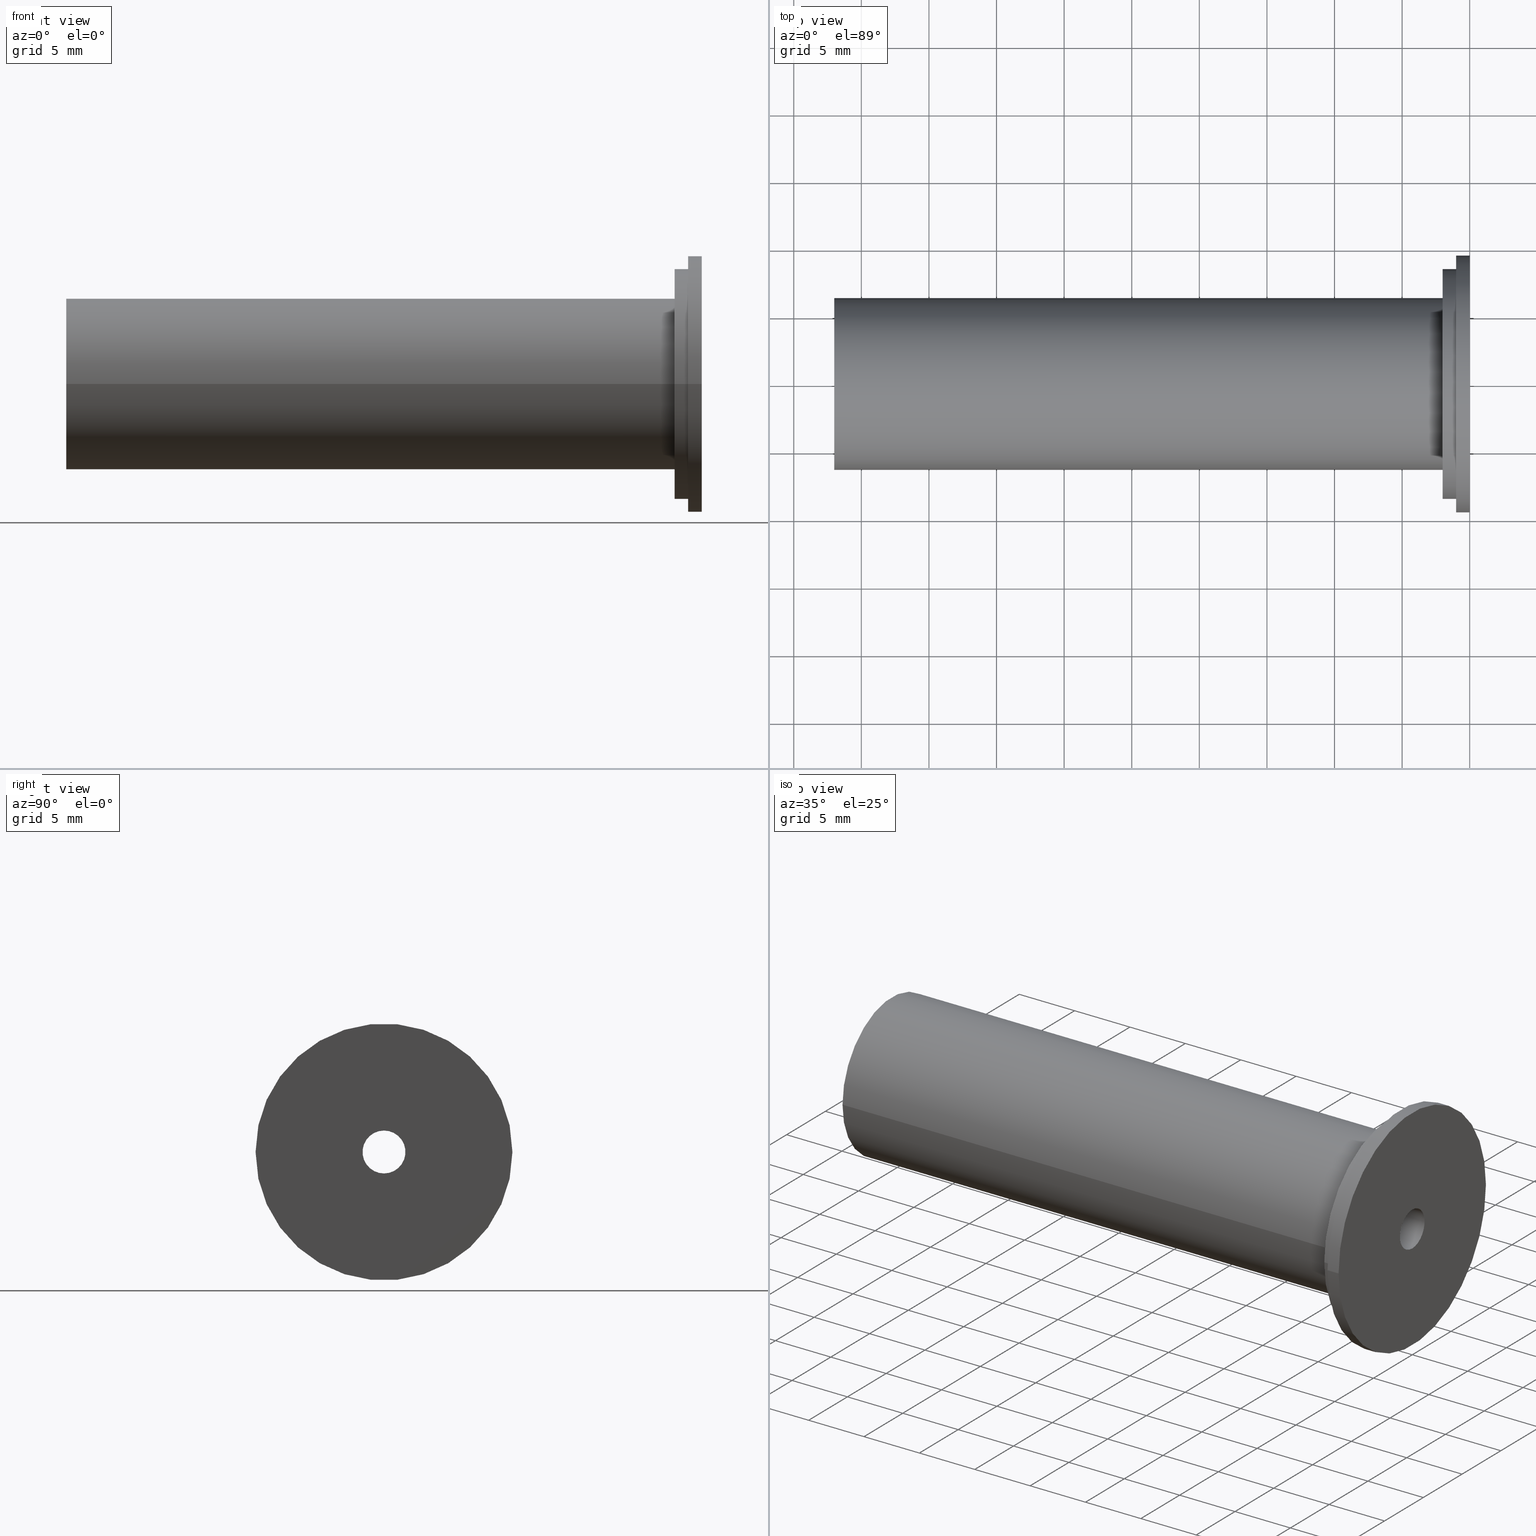
[diagram: canonical four-view strip — front | top / right | iso, engineering-drawing reading convention]
A machine part, canonical four-view strip (front | top / right | iso — engineering-drawing reading convention). The complete STEP part file that produces these views, byte-faithful:
ISO-10303-21;
HEADER;
/* Generated by software containing ST-Developer
 * from STEP Tools, Inc. (www.steptools.com) 
 */

FILE_DESCRIPTION(
/* description */ (''),
/* implementation_level */ '2;1');

FILE_NAME(
/* name */ 
'Z:\\\X2\C5F0AD6CC18C\X0\\\DRAWING_3D\\1. \X2\C778BCA4D130\X0\\\4. LAY
-OUT\\ACCESSORY&OTEHERS\\HYDRAULIC CHUCK\\REDUCTION SLEEVE (COLLET)\\H
K\\HK12.7\\INCH\\HK12.7-3.175\\612108.stp',
/* time_stamp */ '2023-05-26T10:20:03+09:00',
/* author */ ('eos'),
/* organization */ (''),
/* preprocessor_version */ 'ST-DEVELOPER v18.1',
/* originating_system */ 'Autodesk Inventor 2022',
/* authorisation */ '');

FILE_SCHEMA (('AUTOMOTIVE_DESIGN { 1 0 10303 214 3 1 1 }'));
ENDSEC;

DATA;
#10=MECHANICAL_DESIGN_GEOMETRIC_PRESENTATION_REPRESENTATION('',(#13),#384);
#11=SHAPE_REPRESENTATION_RELATIONSHIP('SRR','None',#391,#12);
#12=ADVANCED_BREP_SHAPE_REPRESENTATION('',(#14),#383);
#13=STYLED_ITEM('',(#400),#14);
#14=MANIFOLD_SOLID_BREP('\X2\C194B9ACB4DC\X0\1',#204);
#15=FACE_BOUND('',#48,.T.);
#16=FACE_BOUND('',#51,.T.);
#17=FACE_BOUND('',#53,.T.);
#18=FACE_BOUND('',#56,.T.);
#19=PLANE('',#243);
#20=PLANE('',#248);
#21=PLANE('',#249);
#22=PLANE('',#253);
#23=CONICAL_SURFACE('',#231,1.5,0.785398163397448);
#24=CONICAL_SURFACE('',#235,2.4,0.785398163397448);
#25=CONICAL_SURFACE('',#239,2.5,0.785398163397448);
#26=FACE_OUTER_BOUND('',#40,.T.);
#27=FACE_OUTER_BOUND('',#41,.T.);
#28=FACE_OUTER_BOUND('',#42,.T.);
#29=FACE_OUTER_BOUND('',#43,.T.);
#30=FACE_OUTER_BOUND('',#44,.T.);
#31=FACE_OUTER_BOUND('',#45,.T.);
#32=FACE_OUTER_BOUND('',#46,.T.);
#33=FACE_OUTER_BOUND('',#47,.T.);
#34=FACE_OUTER_BOUND('',#49,.T.);
#35=FACE_OUTER_BOUND('',#50,.T.);
#36=FACE_OUTER_BOUND('',#52,.T.);
#37=FACE_OUTER_BOUND('',#54,.T.);
#38=FACE_OUTER_BOUND('',#55,.T.);
#39=FACE_OUTER_BOUND('',#57,.T.);
#40=EDGE_LOOP('',(#133,#134,#135,#136,#137));
#41=EDGE_LOOP('',(#138,#139,#140,#141,#142));
#42=EDGE_LOOP('',(#143,#144,#145,#146));
#43=EDGE_LOOP('',(#147,#148,#149,#150));
#44=EDGE_LOOP('',(#151,#152,#153,#154));
#45=EDGE_LOOP('',(#155,#156,#157,#158));
#46=EDGE_LOOP('',(#159,#160,#161,#162));
#47=EDGE_LOOP('',(#163));
#48=EDGE_LOOP('',(#164));
#49=EDGE_LOOP('',(#165,#166,#167,#168));
#50=EDGE_LOOP('',(#169));
#51=EDGE_LOOP('',(#170));
#52=EDGE_LOOP('',(#171));
#53=EDGE_LOOP('',(#172));
#54=EDGE_LOOP('',(#173,#174,#175,#176));
#55=EDGE_LOOP('',(#177));
#56=EDGE_LOOP('',(#178));
#57=EDGE_LOOP('',(#179,#180,#181,#182));
#58=LINE('',#331,#68);
#59=LINE('',#338,#69);
#60=LINE('',#342,#70);
#61=LINE('',#346,#71);
#62=LINE('',#350,#72);
#63=LINE('',#354,#73);
#64=LINE('',#358,#74);
#65=LINE('',#367,#75);
#66=LINE('',#375,#76);
#67=LINE('',#380,#77);
#68=VECTOR('',#262,1.5875);
#69=VECTOR('',#271,1.5);
#70=VECTOR('',#276,3.);
#71=VECTOR('',#281,2.4);
#72=VECTOR('',#286,4.8);
#73=VECTOR('',#291,2.5);
#74=VECTOR('',#296,5.);
#75=VECTOR('',#307,9.5);
#76=VECTOR('',#318,6.35);
#77=VECTOR('',#325,8.5);
#78=CIRCLE('',#228,1.5875);
#79=CIRCLE('',#229,1.5875);
#80=CIRCLE('',#230,1.5875);
#81=CIRCLE('',#232,3.);
#82=CIRCLE('',#234,3.);
#83=CIRCLE('',#236,4.8);
#84=CIRCLE('',#238,4.8);
#85=CIRCLE('',#240,5.);
#86=CIRCLE('',#242,5.);
#87=CIRCLE('',#244,9.5);
#88=CIRCLE('',#245,8.5);
#89=CIRCLE('',#247,9.5);
#90=CIRCLE('',#250,6.35);
#91=CIRCLE('',#252,6.35);
#92=CIRCLE('',#254,8.5);
#93=VERTEX_POINT('',#328);
#94=VERTEX_POINT('',#330);
#95=VERTEX_POINT('',#332);
#96=VERTEX_POINT('',#336);
#97=VERTEX_POINT('',#340);
#98=VERTEX_POINT('',#344);
#99=VERTEX_POINT('',#348);
#100=VERTEX_POINT('',#352);
#101=VERTEX_POINT('',#356);
#102=VERTEX_POINT('',#360);
#103=VERTEX_POINT('',#362);
#104=VERTEX_POINT('',#365);
#105=VERTEX_POINT('',#370);
#106=VERTEX_POINT('',#373);
#107=VERTEX_POINT('',#377);
#108=EDGE_CURVE('',#93,#93,#78,.T.);
#109=EDGE_CURVE('',#93,#94,#58,.T.);
#110=EDGE_CURVE('',#95,#94,#79,.T.);
#111=EDGE_CURVE('',#94,#95,#80,.T.);
#112=EDGE_CURVE('',#96,#96,#81,.T.);
#113=EDGE_CURVE('',#96,#95,#59,.T.);
#114=EDGE_CURVE('',#97,#97,#82,.T.);
#115=EDGE_CURVE('',#97,#96,#60,.T.);
#116=EDGE_CURVE('',#98,#98,#83,.T.);
#117=EDGE_CURVE('',#98,#97,#61,.T.);
#118=EDGE_CURVE('',#99,#99,#84,.T.);
#119=EDGE_CURVE('',#99,#98,#62,.T.);
#120=EDGE_CURVE('',#100,#100,#85,.T.);
#121=EDGE_CURVE('',#100,#99,#63,.T.);
#122=EDGE_CURVE('',#101,#101,#86,.T.);
#123=EDGE_CURVE('',#101,#100,#64,.T.);
#124=EDGE_CURVE('',#102,#102,#87,.T.);
#125=EDGE_CURVE('',#103,#103,#88,.T.);
#126=EDGE_CURVE('',#104,#104,#89,.T.);
#127=EDGE_CURVE('',#104,#102,#65,.T.);
#128=EDGE_CURVE('',#105,#105,#90,.T.);
#129=EDGE_CURVE('',#106,#106,#91,.T.);
#130=EDGE_CURVE('',#106,#105,#66,.T.);
#131=EDGE_CURVE('',#107,#107,#92,.T.);
#132=EDGE_CURVE('',#103,#107,#67,.T.);
#133=ORIENTED_EDGE('',*,*,#108,.F.);
#134=ORIENTED_EDGE('',*,*,#109,.T.);
#135=ORIENTED_EDGE('',*,*,#110,.F.);
#136=ORIENTED_EDGE('',*,*,#111,.F.);
#137=ORIENTED_EDGE('',*,*,#109,.F.);
#138=ORIENTED_EDGE('',*,*,#112,.T.);
#139=ORIENTED_EDGE('',*,*,#113,.T.);
#140=ORIENTED_EDGE('',*,*,#110,.T.);
#141=ORIENTED_EDGE('',*,*,#111,.T.);
#142=ORIENTED_EDGE('',*,*,#113,.F.);
#143=ORIENTED_EDGE('',*,*,#114,.F.);
#144=ORIENTED_EDGE('',*,*,#115,.T.);
#145=ORIENTED_EDGE('',*,*,#112,.F.);
#146=ORIENTED_EDGE('',*,*,#115,.F.);
#147=ORIENTED_EDGE('',*,*,#116,.T.);
#148=ORIENTED_EDGE('',*,*,#117,.T.);
#149=ORIENTED_EDGE('',*,*,#114,.T.);
#150=ORIENTED_EDGE('',*,*,#117,.F.);
#151=ORIENTED_EDGE('',*,*,#118,.F.);
#152=ORIENTED_EDGE('',*,*,#119,.T.);
#153=ORIENTED_EDGE('',*,*,#116,.F.);
#154=ORIENTED_EDGE('',*,*,#119,.F.);
#155=ORIENTED_EDGE('',*,*,#120,.T.);
#156=ORIENTED_EDGE('',*,*,#121,.T.);
#157=ORIENTED_EDGE('',*,*,#118,.T.);
#158=ORIENTED_EDGE('',*,*,#121,.F.);
#159=ORIENTED_EDGE('',*,*,#122,.F.);
#160=ORIENTED_EDGE('',*,*,#123,.T.);
#161=ORIENTED_EDGE('',*,*,#120,.F.);
#162=ORIENTED_EDGE('',*,*,#123,.F.);
#163=ORIENTED_EDGE('',*,*,#124,.F.);
#164=ORIENTED_EDGE('',*,*,#125,.T.);
#165=ORIENTED_EDGE('',*,*,#126,.F.);
#166=ORIENTED_EDGE('',*,*,#127,.T.);
#167=ORIENTED_EDGE('',*,*,#124,.T.);
#168=ORIENTED_EDGE('',*,*,#127,.F.);
#169=ORIENTED_EDGE('',*,*,#126,.T.);
#170=ORIENTED_EDGE('',*,*,#108,.T.);
#171=ORIENTED_EDGE('',*,*,#128,.F.);
#172=ORIENTED_EDGE('',*,*,#122,.T.);
#173=ORIENTED_EDGE('',*,*,#129,.F.);
#174=ORIENTED_EDGE('',*,*,#130,.T.);
#175=ORIENTED_EDGE('',*,*,#128,.T.);
#176=ORIENTED_EDGE('',*,*,#130,.F.);
#177=ORIENTED_EDGE('',*,*,#131,.F.);
#178=ORIENTED_EDGE('',*,*,#129,.T.);
#179=ORIENTED_EDGE('',*,*,#125,.F.);
#180=ORIENTED_EDGE('',*,*,#132,.T.);
#181=ORIENTED_EDGE('',*,*,#131,.T.);
#182=ORIENTED_EDGE('',*,*,#132,.F.);
#183=CYLINDRICAL_SURFACE('',#227,1.5875);
#184=CYLINDRICAL_SURFACE('',#233,3.);
#185=CYLINDRICAL_SURFACE('',#237,4.8);
#186=CYLINDRICAL_SURFACE('',#241,5.);
#187=CYLINDRICAL_SURFACE('',#246,9.5);
#188=CYLINDRICAL_SURFACE('',#251,6.35);
#189=CYLINDRICAL_SURFACE('',#255,8.5);
#190=ADVANCED_FACE('',(#26),#183,.F.);
#191=ADVANCED_FACE('',(#27),#23,.F.);
#192=ADVANCED_FACE('',(#28),#184,.F.);
#193=ADVANCED_FACE('',(#29),#24,.F.);
#194=ADVANCED_FACE('',(#30),#185,.F.);
#195=ADVANCED_FACE('',(#31),#25,.F.);
#196=ADVANCED_FACE('',(#32),#186,.F.);
#197=ADVANCED_FACE('',(#33,#15),#19,.T.);
#198=ADVANCED_FACE('',(#34),#187,.T.);
#199=ADVANCED_FACE('',(#35,#16),#20,.T.);
#200=ADVANCED_FACE('',(#36,#17),#21,.T.);
#201=ADVANCED_FACE('',(#37),#188,.T.);
#202=ADVANCED_FACE('',(#38,#18),#22,.T.);
#203=ADVANCED_FACE('',(#39),#189,.T.);
#204=CLOSED_SHELL('',(#190,#191,#192,#193,#194,#195,#196,#197,#198,#199,
#200,#201,#202,#203));
#205=DERIVED_UNIT_ELEMENT(#208,1.);
#206=DERIVED_UNIT_ELEMENT(#386,-3.);
#207=DIMENSIONAL_EXPONENTS(1.,0.,0.,0.,0.,0.,0.);
#208=(
CONVERSION_BASED_UNIT('gram',#210)
MASS_UNIT()
NAMED_UNIT(#207)
);
#209=(
MASS_UNIT()
NAMED_UNIT(*)
SI_UNIT(.KILO.,.GRAM.)
);
#210=MASS_MEASURE_WITH_UNIT(MASS_MEASURE(0.001),#209);
#211=DERIVED_UNIT((#205,#206));
#212=MEASURE_REPRESENTATION_ITEM('density measure',
POSITIVE_RATIO_MEASURE(1.),#211);
#213=PROPERTY_DEFINITION_REPRESENTATION(#218,#215);
#214=PROPERTY_DEFINITION_REPRESENTATION(#219,#216);
#215=REPRESENTATION('material name',(#217),#383);
#216=REPRESENTATION('density',(#212),#383);
#217=DESCRIPTIVE_REPRESENTATION_ITEM('\X2\C77CBC18\X0\','\X2\C77CBC18\X0\');
#218=PROPERTY_DEFINITION('material property','material name',#393);
#219=PROPERTY_DEFINITION('material property','density of part',#393);
#220=DATE_TIME_ROLE('creation_date');
#221=APPLIED_DATE_AND_TIME_ASSIGNMENT(#222,#220,(#393));
#222=DATE_AND_TIME(#223,#224);
#223=CALENDAR_DATE(2023,2,2);
#224=LOCAL_TIME(0,0,0.,#225);
#225=COORDINATED_UNIVERSAL_TIME_OFFSET(0,0,.BEHIND.);
#226=AXIS2_PLACEMENT_3D('placement',#326,#256,#257);
#227=AXIS2_PLACEMENT_3D('',#327,#258,#259);
#228=AXIS2_PLACEMENT_3D('',#329,#260,#261);
#229=AXIS2_PLACEMENT_3D('',#333,#263,#264);
#230=AXIS2_PLACEMENT_3D('',#334,#265,#266);
#231=AXIS2_PLACEMENT_3D('',#335,#267,#268);
#232=AXIS2_PLACEMENT_3D('',#337,#269,#270);
#233=AXIS2_PLACEMENT_3D('',#339,#272,#273);
#234=AXIS2_PLACEMENT_3D('',#341,#274,#275);
#235=AXIS2_PLACEMENT_3D('',#343,#277,#278);
#236=AXIS2_PLACEMENT_3D('',#345,#279,#280);
#237=AXIS2_PLACEMENT_3D('',#347,#282,#283);
#238=AXIS2_PLACEMENT_3D('',#349,#284,#285);
#239=AXIS2_PLACEMENT_3D('',#351,#287,#288);
#240=AXIS2_PLACEMENT_3D('',#353,#289,#290);
#241=AXIS2_PLACEMENT_3D('',#355,#292,#293);
#242=AXIS2_PLACEMENT_3D('',#357,#294,#295);
#243=AXIS2_PLACEMENT_3D('',#359,#297,#298);
#244=AXIS2_PLACEMENT_3D('',#361,#299,#300);
#245=AXIS2_PLACEMENT_3D('',#363,#301,#302);
#246=AXIS2_PLACEMENT_3D('',#364,#303,#304);
#247=AXIS2_PLACEMENT_3D('',#366,#305,#306);
#248=AXIS2_PLACEMENT_3D('',#368,#308,#309);
#249=AXIS2_PLACEMENT_3D('',#369,#310,#311);
#250=AXIS2_PLACEMENT_3D('',#371,#312,#313);
#251=AXIS2_PLACEMENT_3D('',#372,#314,#315);
#252=AXIS2_PLACEMENT_3D('',#374,#316,#317);
#253=AXIS2_PLACEMENT_3D('',#376,#319,#320);
#254=AXIS2_PLACEMENT_3D('',#378,#321,#322);
#255=AXIS2_PLACEMENT_3D('',#379,#323,#324);
#256=DIRECTION('axis',(0.,0.,1.));
#257=DIRECTION('refdir',(1.,0.,0.));
#258=DIRECTION('center_axis',(1.,0.,0.));
#259=DIRECTION('ref_axis',(0.,0.,-1.));
#260=DIRECTION('center_axis',(-1.,0.,0.));
#261=DIRECTION('ref_axis',(0.,0.,-1.));
#262=DIRECTION('',(-1.,0.,0.));
#263=DIRECTION('center_axis',(1.,0.,0.));
#264=DIRECTION('ref_axis',(0.,0.,-1.));
#265=DIRECTION('center_axis',(1.,0.,0.));
#266=DIRECTION('ref_axis',(0.,0.,-1.));
#267=DIRECTION('center_axis',(-1.,0.,0.));
#268=DIRECTION('ref_axis',(0.,0.,1.));
#269=DIRECTION('center_axis',(-1.,0.,0.));
#270=DIRECTION('ref_axis',(0.,0.,1.));
#271=DIRECTION('',(0.707106781186548,8.65956056235493E-17,0.707106781186547));
#272=DIRECTION('center_axis',(-1.,0.,0.));
#273=DIRECTION('ref_axis',(0.,0.,1.));
#274=DIRECTION('center_axis',(1.,0.,0.));
#275=DIRECTION('ref_axis',(0.,0.,1.));
#276=DIRECTION('',(1.,0.,0.));
#277=DIRECTION('center_axis',(-1.,0.,0.));
#278=DIRECTION('ref_axis',(0.,0.,1.));
#279=DIRECTION('center_axis',(-1.,0.,0.));
#280=DIRECTION('ref_axis',(0.,0.,1.));
#281=DIRECTION('',(0.707106781186548,8.65956056235493E-17,0.707106781186547));
#282=DIRECTION('center_axis',(-1.,0.,0.));
#283=DIRECTION('ref_axis',(0.,0.,1.));
#284=DIRECTION('center_axis',(1.,0.,0.));
#285=DIRECTION('ref_axis',(0.,0.,1.));
#286=DIRECTION('',(1.,0.,0.));
#287=DIRECTION('center_axis',(-1.,0.,0.));
#288=DIRECTION('ref_axis',(0.,0.,1.));
#289=DIRECTION('center_axis',(-1.,0.,0.));
#290=DIRECTION('ref_axis',(0.,0.,1.));
#291=DIRECTION('',(0.707106781186548,8.65956056235493E-17,0.707106781186547));
#292=DIRECTION('center_axis',(-1.,0.,0.));
#293=DIRECTION('ref_axis',(0.,0.,1.));
#294=DIRECTION('center_axis',(1.,0.,0.));
#295=DIRECTION('ref_axis',(0.,0.,1.));
#296=DIRECTION('',(1.,0.,0.));
#297=DIRECTION('center_axis',(-1.,0.,0.));
#298=DIRECTION('ref_axis',(0.,0.,1.));
#299=DIRECTION('center_axis',(1.,0.,0.));
#300=DIRECTION('ref_axis',(0.,0.,-1.));
#301=DIRECTION('center_axis',(1.,0.,0.));
#302=DIRECTION('ref_axis',(0.,0.,-1.));
#303=DIRECTION('center_axis',(1.,0.,0.));
#304=DIRECTION('ref_axis',(0.,1.,0.));
#305=DIRECTION('center_axis',(1.,0.,0.));
#306=DIRECTION('ref_axis',(0.,0.,-1.));
#307=DIRECTION('',(-1.,0.,0.));
#308=DIRECTION('center_axis',(1.,0.,0.));
#309=DIRECTION('ref_axis',(0.,0.,-1.));
#310=DIRECTION('center_axis',(-1.,0.,0.));
#311=DIRECTION('ref_axis',(0.,0.,1.));
#312=DIRECTION('center_axis',(1.,0.,0.));
#313=DIRECTION('ref_axis',(0.,0.,-1.));
#314=DIRECTION('center_axis',(1.,0.,0.));
#315=DIRECTION('ref_axis',(0.,1.,0.));
#316=DIRECTION('center_axis',(1.,0.,0.));
#317=DIRECTION('ref_axis',(0.,0.,-1.));
#318=DIRECTION('',(-1.,0.,0.));
#319=DIRECTION('center_axis',(-1.,0.,0.));
#320=DIRECTION('ref_axis',(0.,0.,1.));
#321=DIRECTION('center_axis',(1.,0.,0.));
#322=DIRECTION('ref_axis',(0.,0.,-1.));
#323=DIRECTION('center_axis',(1.,0.,0.));
#324=DIRECTION('ref_axis',(0.,1.,0.));
#325=DIRECTION('',(-1.,0.,0.));
#326=CARTESIAN_POINT('',(0.,0.,0.));
#327=CARTESIAN_POINT('Origin',(-54.1387107345567,0.,0.));
#328=CARTESIAN_POINT('',(1.77635683940025E-14,-1.94412679364642E-16,1.5875));
#329=CARTESIAN_POINT('Origin',(1.77635683940025E-14,0.,0.));
#330=CARTESIAN_POINT('',(-16.0875,-1.94412679364642E-16,1.5875));
#331=CARTESIAN_POINT('',(-54.1387107345567,-1.94412679364642E-16,1.5875));
#332=CARTESIAN_POINT('',(-16.0875,-1.94412679364642E-16,-1.5875));
#333=CARTESIAN_POINT('Origin',(-16.0875,0.,0.));
#334=CARTESIAN_POINT('Origin',(-16.0875,0.,0.));
#335=CARTESIAN_POINT('Origin',(-16.,0.,0.));
#336=CARTESIAN_POINT('',(-17.5,-3.67394039744206E-16,-3.));
#337=CARTESIAN_POINT('Origin',(-17.5,0.,0.));
#338=CARTESIAN_POINT('',(-16.,-1.83697019872103E-16,-1.5));
#339=CARTESIAN_POINT('Origin',(-32.25,0.,0.));
#340=CARTESIAN_POINT('',(-24.,3.67394039744206E-16,-3.));
#341=CARTESIAN_POINT('Origin',(-24.,0.,0.));
#342=CARTESIAN_POINT('',(-32.25,-3.67394039744206E-16,-3.));
#343=CARTESIAN_POINT('Origin',(-23.4,0.,0.));
#344=CARTESIAN_POINT('',(-25.8,-5.8783046359073E-16,-4.8));
#345=CARTESIAN_POINT('Origin',(-25.8,0.,0.));
#346=CARTESIAN_POINT('',(-23.4,-2.93915231795365E-16,-2.4));
#347=CARTESIAN_POINT('Origin',(-36.4,0.,0.));
#348=CARTESIAN_POINT('',(-32.3,5.87830463590729E-16,-4.8));
#349=CARTESIAN_POINT('Origin',(-32.3,0.,0.));
#350=CARTESIAN_POINT('',(-36.4,-5.87830463590729E-16,-4.8));
#351=CARTESIAN_POINT('Origin',(-30.,0.,0.));
#352=CARTESIAN_POINT('',(-32.5,-6.12323399573677E-16,-5.));
#353=CARTESIAN_POINT('Origin',(-32.5,0.,0.));
#354=CARTESIAN_POINT('',(-30.,-3.06161699786838E-16,-2.5));
#355=CARTESIAN_POINT('Origin',(-39.75,0.,0.));
#356=CARTESIAN_POINT('',(-47.,-6.12323399573677E-16,-5.));
#357=CARTESIAN_POINT('Origin',(-47.,0.,0.));
#358=CARTESIAN_POINT('',(-39.75,-6.12323399573677E-16,-5.));
#359=CARTESIAN_POINT('Origin',(-0.999999999999994,9.5,0.));
#360=CARTESIAN_POINT('',(-0.999999999999994,-9.5,-1.16341445918999E-15));
#361=CARTESIAN_POINT('Origin',(-0.999999999999994,0.,0.));
#362=CARTESIAN_POINT('',(-0.999999999999994,-8.5,-1.04094977927525E-15));
#363=CARTESIAN_POINT('Origin',(-0.999999999999994,0.,0.));
#364=CARTESIAN_POINT('Origin',(-0.499999999999993,0.,0.));
#365=CARTESIAN_POINT('',(7.49400541621981E-15,-9.5,-1.16341445918999E-15));
#366=CARTESIAN_POINT('Origin',(7.49400541621981E-15,0.,0.));
#367=CARTESIAN_POINT('',(-0.499999999999993,-9.5,-1.16341445918999E-15));
#368=CARTESIAN_POINT('Origin',(1.33226762955019E-14,0.,0.));
#369=CARTESIAN_POINT('Origin',(-47.,6.35,0.));
#370=CARTESIAN_POINT('',(-47.,-6.35,-7.7765071745857E-16));
#371=CARTESIAN_POINT('Origin',(-47.,0.,0.));
#372=CARTESIAN_POINT('Origin',(-24.5,0.,0.));
#373=CARTESIAN_POINT('',(-2.,-6.35,-7.7765071745857E-16));
#374=CARTESIAN_POINT('Origin',(-2.,0.,0.));
#375=CARTESIAN_POINT('',(-24.5,-6.35,-7.7765071745857E-16));
#376=CARTESIAN_POINT('Origin',(-2.,8.5,0.));
#377=CARTESIAN_POINT('',(-2.,-8.5,-1.04094977927525E-15));
#378=CARTESIAN_POINT('Origin',(-2.,0.,0.));
#379=CARTESIAN_POINT('Origin',(-1.5,0.,0.));
#380=CARTESIAN_POINT('',(-1.5,-8.5,-1.04094977927525E-15));
#381=UNCERTAINTY_MEASURE_WITH_UNIT(LENGTH_MEASURE(0.01),#385,
'DISTANCE_ACCURACY_VALUE',
'Maximum model space distance between geometric entities at asserted c
onnectivities');
#382=UNCERTAINTY_MEASURE_WITH_UNIT(LENGTH_MEASURE(0.01),#385,
'DISTANCE_ACCURACY_VALUE',
'Maximum model space distance between geometric entities at asserted c
onnectivities');
#383=(
GEOMETRIC_REPRESENTATION_CONTEXT(3)
GLOBAL_UNCERTAINTY_ASSIGNED_CONTEXT((#381))
GLOBAL_UNIT_ASSIGNED_CONTEXT((#385,#387,#388))
REPRESENTATION_CONTEXT('','3D')
);
#384=(
GEOMETRIC_REPRESENTATION_CONTEXT(3)
GLOBAL_UNCERTAINTY_ASSIGNED_CONTEXT((#382))
GLOBAL_UNIT_ASSIGNED_CONTEXT((#385,#387,#388))
REPRESENTATION_CONTEXT('','3D')
);
#385=(
LENGTH_UNIT()
NAMED_UNIT(*)
SI_UNIT(.MILLI.,.METRE.)
);
#386=(
LENGTH_UNIT()
NAMED_UNIT(*)
SI_UNIT(.CENTI.,.METRE.)
);
#387=(
NAMED_UNIT(*)
PLANE_ANGLE_UNIT()
SI_UNIT($,.RADIAN.)
);
#388=(
NAMED_UNIT(*)
SI_UNIT($,.STERADIAN.)
SOLID_ANGLE_UNIT()
);
#389=SHAPE_DEFINITION_REPRESENTATION(#390,#391);
#390=PRODUCT_DEFINITION_SHAPE('',$,#393);
#391=SHAPE_REPRESENTATION('',(#226),#383);
#392=PRODUCT_DEFINITION_CONTEXT('part definition',#397,'design');
#393=PRODUCT_DEFINITION('LO-HK19.05-3.175','LO-HK12.7-3.175',#394,#392);
#394=PRODUCT_DEFINITION_FORMATION('',$,#399);
#395=PRODUCT_RELATED_PRODUCT_CATEGORY('LO-HK12.7-3.175',
'LO-HK12.7-3.175',(#399));
#396=APPLICATION_PROTOCOL_DEFINITION('international standard',
'automotive_design',2009,#397);
#397=APPLICATION_CONTEXT(
'Core Data for Automotive Mechanical Design Process');
#398=PRODUCT_CONTEXT('part definition',#397,'mechanical');
#399=PRODUCT('LO-HK19.05-3.175','LO-HK12.7-3.175',$,(#398));
#400=PRESENTATION_STYLE_ASSIGNMENT((#401));
#401=SURFACE_STYLE_USAGE(.BOTH.,#404);
#402=SURFACE_STYLE_RENDERING_WITH_PROPERTIES($,#408,(#403));
#403=SURFACE_STYLE_TRANSPARENT(0.339999973773956);
#404=SURFACE_SIDE_STYLE('',(#405,#402));
#405=SURFACE_STYLE_FILL_AREA(#406);
#406=FILL_AREA_STYLE('',(#407));
#407=FILL_AREA_STYLE_COLOUR('',#408);
#408=COLOUR_RGB('',0.925490196078431,0.945098039215686,0.937254901960784);
ENDSEC;
END-ISO-10303-21;
